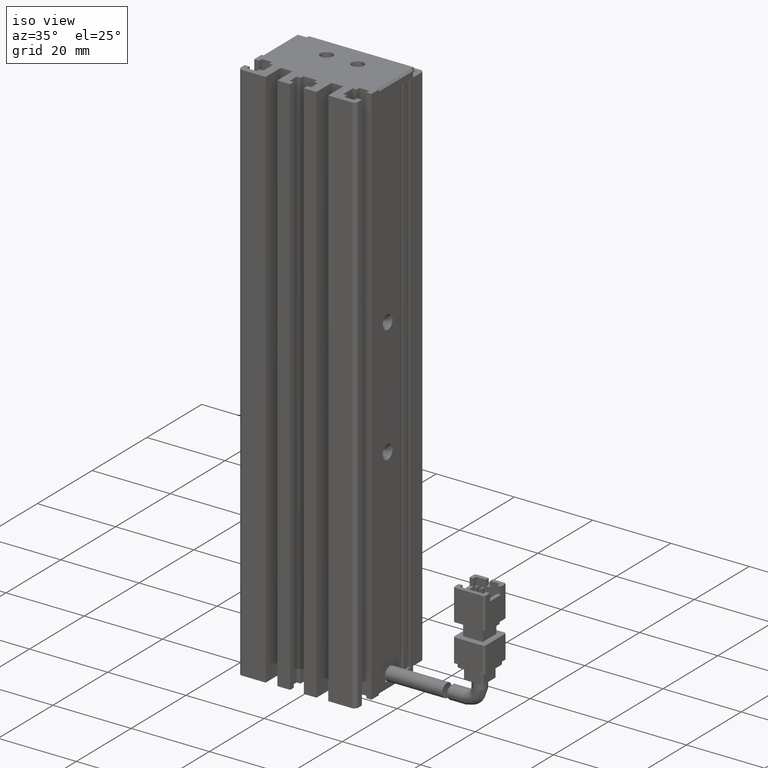
[diagram: clean part render]
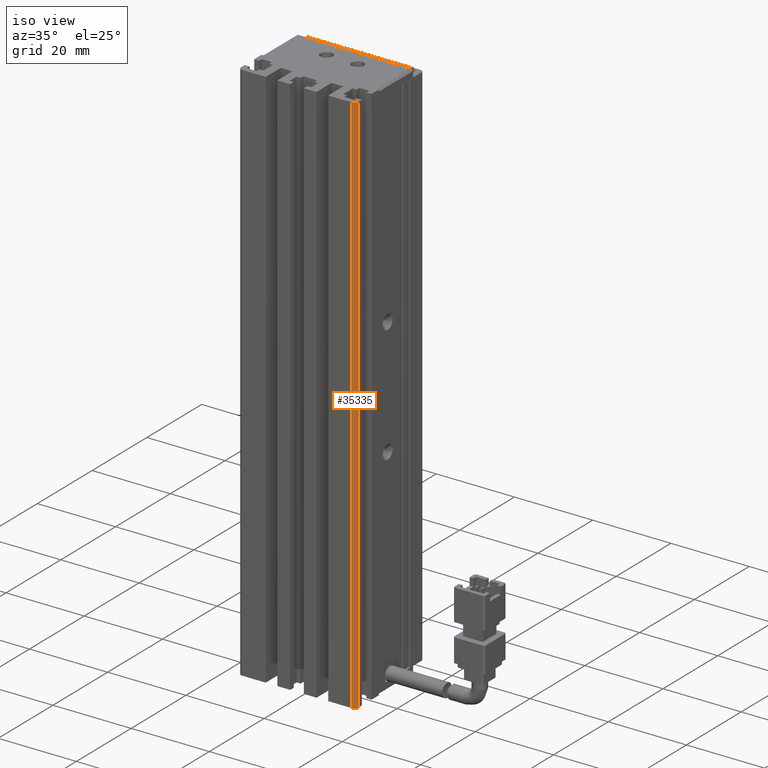
[diagram: same view with one face highlighted and labeled with its STEP entity id]
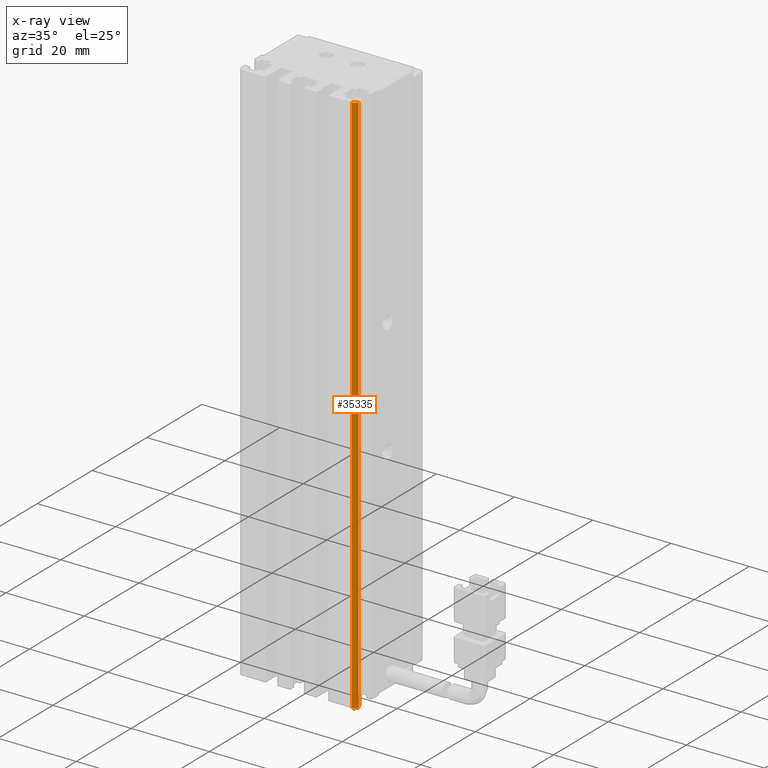
[diagram: x-ray of the same camera — body ghosted, the highlighted face saturated]
A machine part, iso view. The second image highlights one B-rep face of the part: STEP entity #35335.
The next image is the same camera in x-ray: the body ghosted, the highlighted face saturated — about 0% of this face is hidden behind the body in this view.
In plain terms, the highlighted cylindrical surface (edge-blend (fillet) strip) has radius 1 mm, axis along (-0, -0, -1).
Its self-contained STEP definition (entity closure, byte-faithful):
#301 = CARTESIAN_POINT ( 'NONE',  ( 54.92537974683542500, 10.69594479660386800, -45.00000000000000000 ) ) ;
#888 = CARTESIAN_POINT ( 'NONE',  ( 54.92537974683542500, 10.69594479660386800, -45.00000000000000000 ) ) ;
#1544 = CARTESIAN_POINT ( 'NONE',  ( 54.92537974683542500, 10.69594479660386800, -185.0000000000000000 ) ) ;
#1741 = EDGE_LOOP ( 'NONE', ( #16057, #5342, #32806, #2507 ) ) ;
#1952 = VERTEX_POINT ( 'NONE', #888 ) ;
#2507 = ORIENTED_EDGE ( 'NONE', *, *, #33940, .T. ) ;
#4678 = CARTESIAN_POINT ( 'NONE',  ( 54.92537974683542500, 11.69594479660387000, -45.00000000000000000 ) ) ;
#5342 = ORIENTED_EDGE ( 'NONE', *, *, #15582, .T. ) ;
#5612 = AXIS2_PLACEMENT_3D ( 'NONE', #4678, #13209, #24740 ) ;
#6027 = CARTESIAN_POINT ( 'NONE',  ( 55.92537974683542500, 11.69594479660387000, -185.0000000000000000 ) ) ;
#7233 = VERTEX_POINT ( 'NONE', #6027 ) ;
#7265 = CIRCLE ( 'NONE', #21183, 1.000000000000000900 ) ;
#9068 = DIRECTION ( 'NONE',  ( 0.0000000000000000000, 0.0000000000000000000, 1.000000000000000000 ) ) ;
#9215 = FACE_OUTER_BOUND ( 'NONE', #1741, .T. ) ;
#11083 = CIRCLE ( 'NONE', #32870, 1.000000000000000900 ) ;
#11487 = VERTEX_POINT ( 'NONE', #23475 ) ;
#12726 = DIRECTION ( 'NONE',  ( -0.0000000000000000000, -0.0000000000000000000, -1.000000000000000000 ) ) ;
#13209 = DIRECTION ( 'NONE',  ( -0.0000000000000000000, -0.0000000000000000000, -1.000000000000000000 ) ) ;
#15582 = EDGE_CURVE ( 'NONE', #1952, #28513, #35289, .T. ) ;
#16057 = ORIENTED_EDGE ( 'NONE', *, *, #36934, .T. ) ;
#21183 = AXIS2_PLACEMENT_3D ( 'NONE', #29936, #12726, #32802 ) ;
#23211 = DIRECTION ( 'NONE',  ( -0.0000000000000000000, -0.0000000000000000000, -1.000000000000000000 ) ) ;
#23475 = CARTESIAN_POINT ( 'NONE',  ( 55.92537974683542500, 11.69594479660387000, -45.00000000000000000 ) ) ;
#24740 = DIRECTION ( 'NONE',  ( -1.000000000000000000, 0.0000000000000000000, 0.0000000000000000000 ) ) ;
#26264 = CARTESIAN_POINT ( 'NONE',  ( 54.92537974683542500, 11.69594479660387000, -185.0000000000000000 ) ) ;
#27311 = VECTOR ( 'NONE', #35596, 1000.000000000000000 ) ;
#27637 = VECTOR ( 'NONE', #23211, 1000.000000000000000 ) ;
#28513 = VERTEX_POINT ( 'NONE', #1544 ) ;
#29129 = DIRECTION ( 'NONE',  ( -1.000000000000000000, 0.0000000000000000000, 0.0000000000000000000 ) ) ;
#29825 = CARTESIAN_POINT ( 'NONE',  ( 55.92537974683542500, 11.69594479660387000, -45.00000000000000000 ) ) ;
#29936 = CARTESIAN_POINT ( 'NONE',  ( 54.92537974683542500, 11.69594479660387000, -45.00000000000000000 ) ) ;
#32380 = EDGE_CURVE ( 'NONE', #28513, #7233, #11083, .T. ) ;
#32802 = DIRECTION ( 'NONE',  ( -1.000000000000000000, 0.0000000000000000000, 0.0000000000000000000 ) ) ;
#32806 = ORIENTED_EDGE ( 'NONE', *, *, #32380, .T. ) ;
#32870 = AXIS2_PLACEMENT_3D ( 'NONE', #26264, #9068, #29129 ) ;
#33940 = EDGE_CURVE ( 'NONE', #7233, #11487, #34977, .T. ) ;
#34977 = LINE ( 'NONE', #29825, #27311 ) ;
#35289 = LINE ( 'NONE', #301, #27637 ) ;
#35335 = ADVANCED_FACE ( 'NONE', ( #9215 ), #36158, .T. ) ;
#35596 = DIRECTION ( 'NONE',  ( 0.0000000000000000000, 0.0000000000000000000, 1.000000000000000000 ) ) ;
#36158 = CYLINDRICAL_SURFACE ( 'NONE', #5612, 1.000000000000000900 ) ;
#36934 = EDGE_CURVE ( 'NONE', #11487, #1952, #7265, .T. ) ;